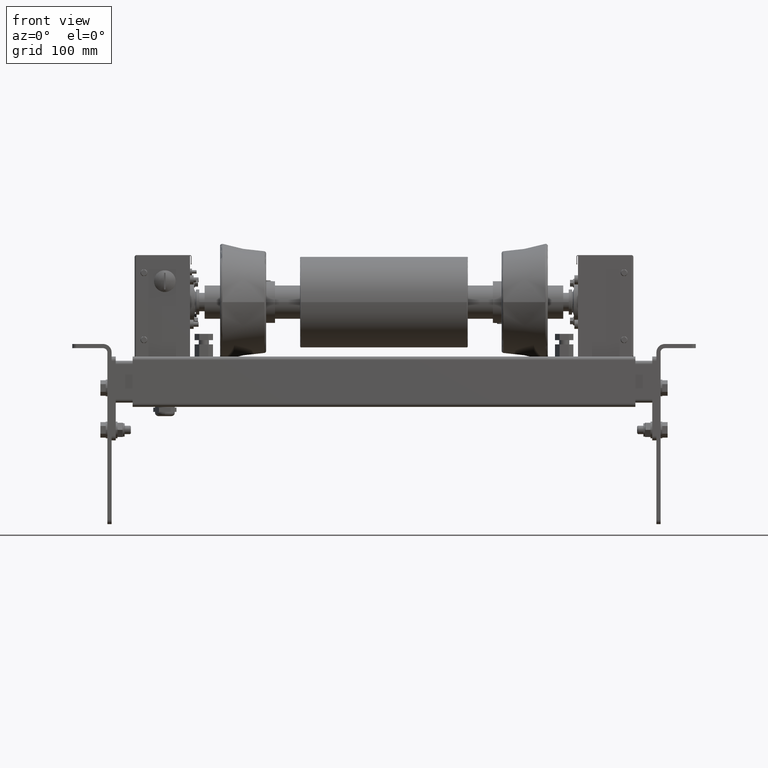
[diagram: clean part render]
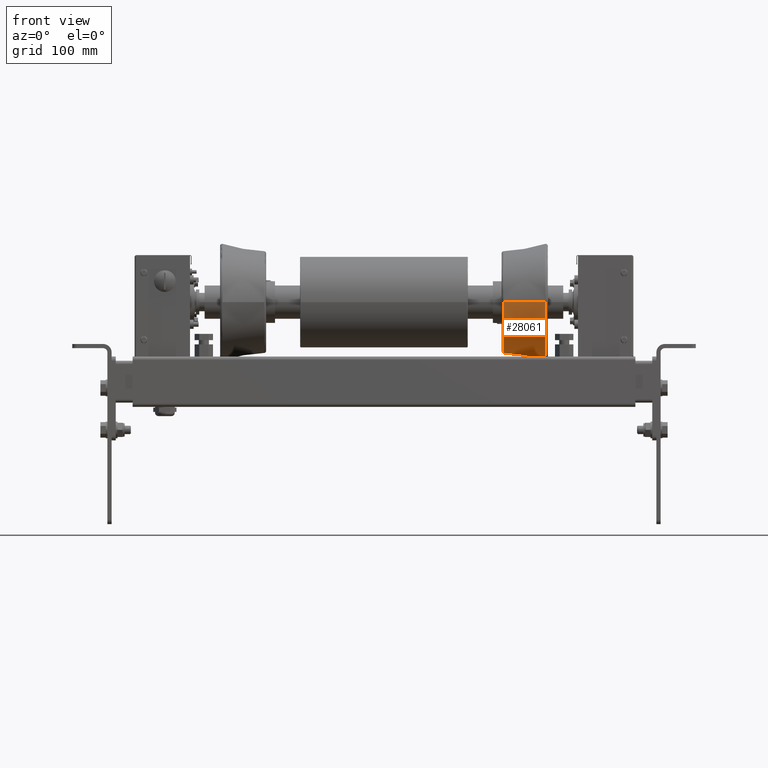
[diagram: same view with one face highlighted and labeled with its STEP entity id]
A machine part, front view. The second image highlights one B-rep face of the part: STEP entity #28061.
In plain terms, the highlighted conical surface has half-angle 10 deg.
Its self-contained STEP definition (entity closure, byte-faithful):
#27964=CARTESIAN_POINT('',(-108.569059908379420,-81.635308606829057,-61.166286365621751));
#27965=VERTEX_POINT('',#27964);
#27975=CARTESIAN_POINT('',(-108.569059908379420,-142.301594972450800,-0.500000000000007));
#27976=VERTEX_POINT('',#27975);
#27977=CARTESIAN_POINT('',(-108.569059908379420,-81.635308606829057,-0.500000000000007));
#27978=DIRECTION('',(-1.0,0.0,0.0));
#27979=DIRECTION('',(0.0,-1.0,0.0));
#27980=AXIS2_PLACEMENT_3D('',#27977,#27978,#27979);
#27981=CIRCLE('',#27980,60.666286365621744);
#27982=EDGE_CURVE('',#27965,#27976,#27981,.T.);
#28012=CARTESIAN_POINT('',(-83.134939464212096,-81.635308606829057,-0.500000000000000));
#28013=DIRECTION('',(1.0,0.0,0.0));
#28014=DIRECTION('',(0.0,1.0,0.0));
#28015=AXIS2_PLACEMENT_3D('',#28012,#28013,#28014);
#28016=CONICAL_SURFACE('',#28015,65.151008030517218,10.0);
#28017=CARTESIAN_POINT('',(-58.569059908379430,-12.152673205784055,-0.500000000000000));
#28018=VERTEX_POINT('',#28017);
#28019=CARTESIAN_POINT('',(-108.569059908379420,-20.969022241207313,-0.500000000000015));
#28020=VERTEX_POINT('',#28019);
#28021=CARTESIAN_POINT('',(-58.569059908379430,-12.152673205784055,-0.500000000000000));
#28022=DIRECTION('',(-0.984807753012208,-0.173648177666931,-2.930195E-016));
#28023=VECTOR('',#28022,50.771330594287235);
#28024=LINE('',#28021,#28023);
#28025=EDGE_CURVE('',#28018,#28020,#28024,.T.);
#28026=ORIENTED_EDGE('',*,*,#28025,.F.);
#28027=CARTESIAN_POINT('',(-58.569059908379430,-81.635308606829057,-69.982635401045002));
#28028=VERTEX_POINT('',#28027);
#28029=CARTESIAN_POINT('',(-58.569059908379430,-81.635308606829042,-0.500000000000009));
#28030=DIRECTION('',(1.0,0.0,0.0));
#28031=DIRECTION('',(0.0,-1.0,0.0));
#28032=AXIS2_PLACEMENT_3D('',#28029,#28030,#28031);
#28033=CIRCLE('',#28032,69.482635401044988);
#28034=EDGE_CURVE('',#28028,#28018,#28033,.T.);
#28035=ORIENTED_EDGE('',*,*,#28034,.F.);
#28036=CARTESIAN_POINT('',(-58.569059908379423,-151.117944007874030,-0.500000000000009));
#28037=VERTEX_POINT('',#28036);
#28038=CARTESIAN_POINT('',(-58.569059908379430,-81.635308606829042,-0.500000000000009));
#28039=DIRECTION('',(1.0,0.0,0.0));
#28040=DIRECTION('',(0.0,-1.0,0.0));
#28041=AXIS2_PLACEMENT_3D('',#28038,#28039,#28040);
#28042=CIRCLE('',#28041,69.482635401044988);
#28043=EDGE_CURVE('',#28037,#28028,#28042,.T.);
#28044=ORIENTED_EDGE('',*,*,#28043,.F.);
#28045=CARTESIAN_POINT('',(-58.569059908379423,-151.117944007874030,-0.500000000000009));
#28046=DIRECTION('',(-0.984807753012208,0.173648177666930,2.186712E-017));
#28047=VECTOR('',#28046,50.771330594287235);
#28048=LINE('',#28045,#28047);
#28049=EDGE_CURVE('',#28037,#27976,#28048,.T.);
#28050=ORIENTED_EDGE('',*,*,#28049,.T.);
#28051=ORIENTED_EDGE('',*,*,#27982,.F.);
#28052=CARTESIAN_POINT('',(-108.569059908379420,-81.635308606829057,-0.500000000000007));
#28053=DIRECTION('',(-1.0,0.0,0.0));
#28054=DIRECTION('',(0.0,-1.0,0.0));
#28055=AXIS2_PLACEMENT_3D('',#28052,#28053,#28054);
#28056=CIRCLE('',#28055,60.666286365621744);
#28057=EDGE_CURVE('',#28020,#27965,#28056,.T.);
#28058=ORIENTED_EDGE('',*,*,#28057,.F.);
#28059=EDGE_LOOP('',(#28026,#28035,#28044,#28050,#28051,#28058));
#28060=FACE_OUTER_BOUND('',#28059,.T.);
#28061=ADVANCED_FACE('',(#28060),#28016,.T.);